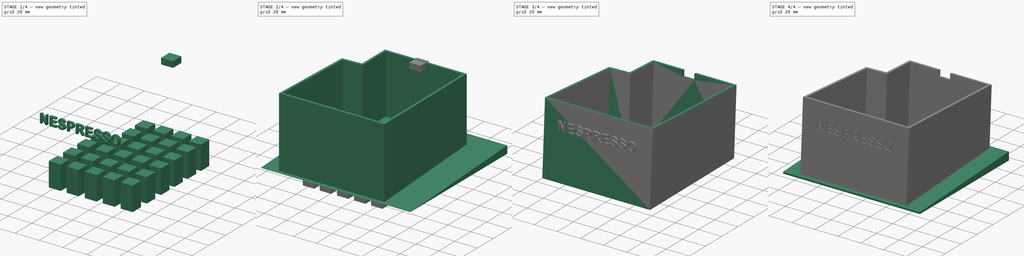
[diagram: build sequence overview — one tinted view per stage of 4, left to right]
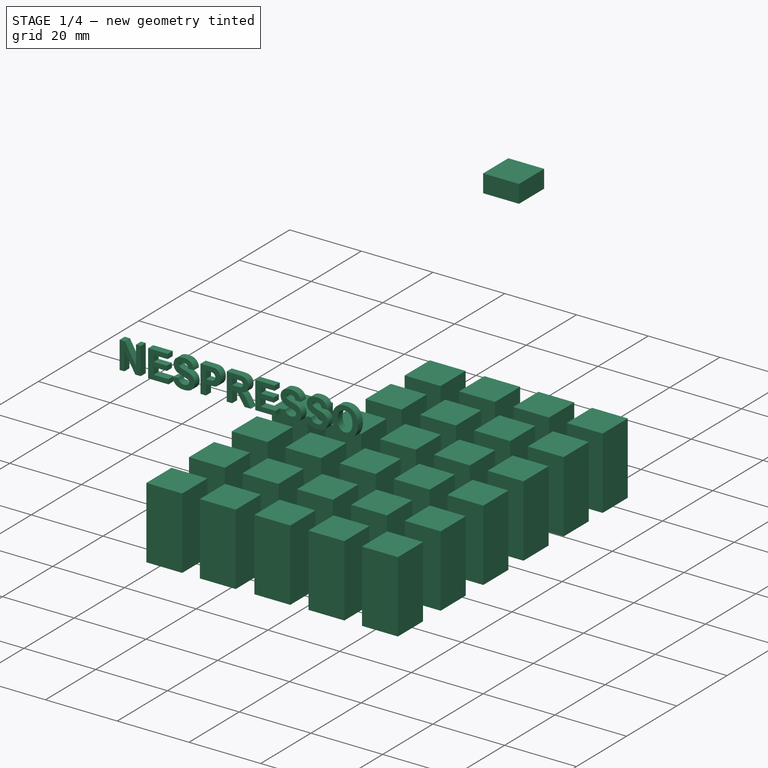
[diagram: stage 1 of 4 — iso view after this stage's code; geometry added in this stage tinted green]
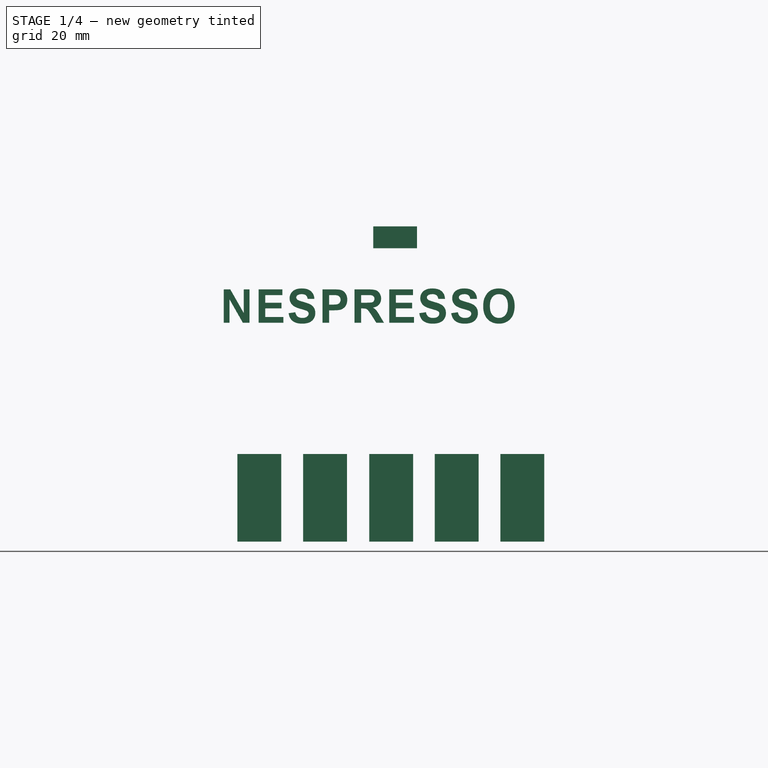
[diagram: stage 1 of 4 — front view after this stage's code; geometry added in this stage tinted green]
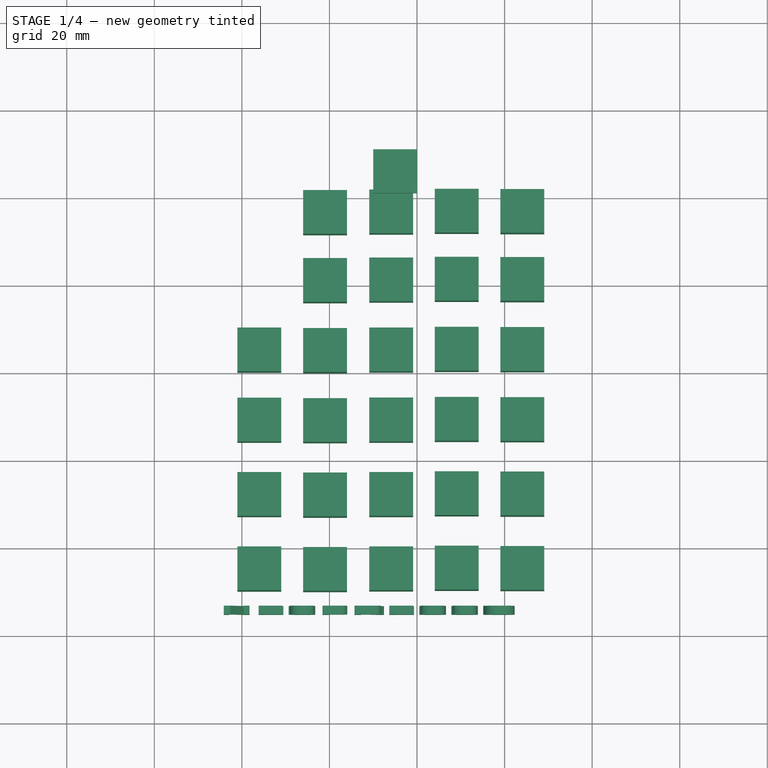
[diagram: stage 1 of 4 — top view after this stage's code; geometry added in this stage tinted green]
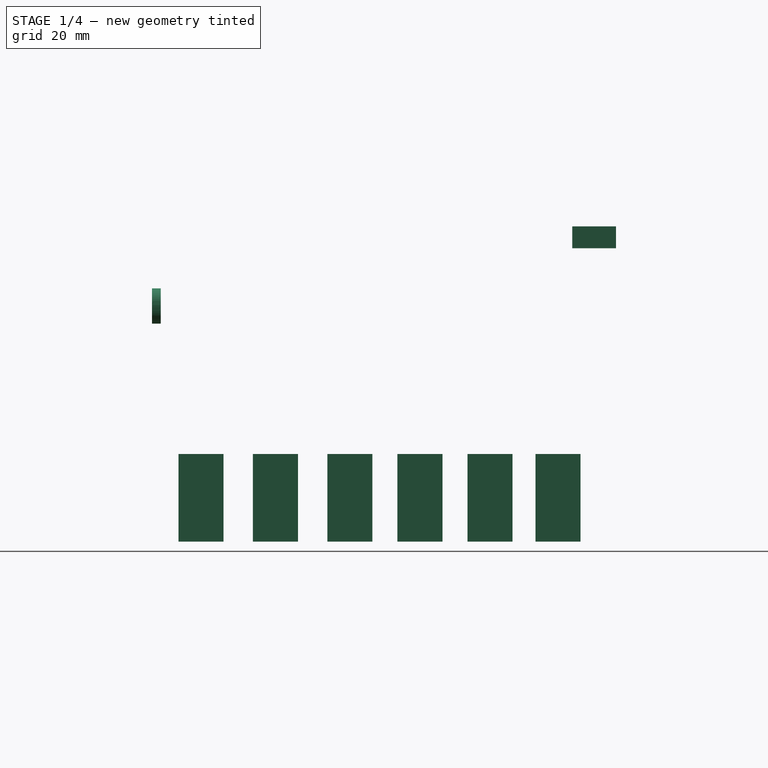
[diagram: stage 1 of 4 — right view after this stage's code; geometry added in this stage tinted green]
FCSTD DOCUMENT  (FreeCAD 0.16R6703 (Git))
Label: Essenza-Bucket-v4
License: FreeArt
LicenseURL: http://artlibre.org/licence/lal
objects: Part::Plane×121, Part::MultiFuse×12, Part::Feature×8, Part::Cut×5, Part::FeaturePython×4, Part::Extrusion×4, Part::Common×2, Part::Fuse×2, PartDesign::Pad×2, Part::Box×1, Sketcher::SketchObject×1, Part::Part2DObjectPython×1
note: 165 computed .brp shape members not serialized (recipe doc carries the construction recipe); baked Part::Feature solids carry a one-line shape summary decoded from their .brp

FEATURE [Part::Feature] Matrix_Deformation001
  Placement = pos=(-10,-0.1,-0.1) rot=(0.57735,0.57735,0.57735;2.0944rad)
  shape: bbox 132 x 122.1 x 6.6 mm, 5 faces (baked)
FEATURE [Part::Box] cube
  Height = 5
  Length = 10
  Placement = pos=(50,100,57) rot=(0,0,1;0rad)
  Width = 10
FEATURE [Sketcher::SketchObject] Sketch001
  sketch-geometry (118):
    g0: LineSegment [constr] StartX=5.72323 StartY=5.28614 StartZ=0 EndX=94.0468 EndY=5.28614 EndZ=0
    g1: LineSegment [constr] StartX=94.0468 StartY=5.28614 StartZ=0 EndX=94.0468 EndY=106.819 EndZ=0
    g2: LineSegment [constr] StartX=94.0468 StartY=106.819 StartZ=0 EndX=25.3557 EndY=106.819 EndZ=0
    g3: LineSegment [constr] StartX=25.3557 StartY=106.819 StartZ=0 EndX=25.3557 EndY=76.8205 EndZ=0
    g4: LineSegment [constr] StartX=25.3557 StartY=76.8205 StartZ=0 EndX=8.65681 EndY=76.1435 EndZ=0
    g5: LineSegment [constr] StartX=8.65681 StartY=76.1435 StartZ=0 EndX=5.94889 EndY=5.96312 EndZ=0
    g6: LineSegment StartX=79.0468 StartY=101.819 StartZ=0 EndX=89.0468 EndY=101.819 EndZ=0
    g7: LineSegment StartX=89.0468 StartY=101.819 StartZ=0 EndX=89.0468 EndY=91.8194 EndZ=0
    g8: LineSegment StartX=89.0468 StartY=91.8194 StartZ=0 EndX=79.0468 EndY=91.8194 EndZ=0
    g9: LineSegment StartX=79.0468 StartY=91.8194 StartZ=0 EndX=79.0468 EndY=101.819 EndZ=0
    g10: LineSegment StartX=79.0468 StartY=86.2861 StartZ=0 EndX=89.0468 EndY=86.2861 EndZ=0
    g11: LineSegment StartX=89.0468 StartY=86.2861 StartZ=0 EndX=89.0468 EndY=76.2861 EndZ=0
    g12: LineSegment StartX=89.0468 StartY=76.2861 StartZ=0 EndX=79.0468 EndY=76.2861 EndZ=0
    g13: LineSegment StartX=79.0468 StartY=76.2861 StartZ=0 EndX=79.0468 EndY=86.2861 EndZ=0
    g14: LineSegment StartX=79.0468 StartY=70.2861 StartZ=0 EndX=89.0468 EndY=70.2861 EndZ=0
    g15: LineSegment StartX=89.0468 StartY=70.2861 StartZ=0 EndX=89.0468 EndY=60.2861 EndZ=0
    g16: LineSegment StartX=89.0468 StartY=60.2861 StartZ=0 EndX=79.0468 EndY=60.2861 EndZ=0
    g17: LineSegment StartX=79.0468 StartY=60.2861 StartZ=0 EndX=79.0468 EndY=70.2861 EndZ=0
    g18: LineSegment StartX=79.0468 StartY=37.2861 StartZ=0 EndX=89.0468 EndY=37.2861 EndZ=0
    g19: LineSegment StartX=89.0468 StartY=37.2861 StartZ=0 EndX=89.0468 EndY=27.2861 EndZ=0
    g20: LineSegment StartX=89.0468 StartY=27.2861 StartZ=0 EndX=79.0468 EndY=27.2861 EndZ=0
    g21: LineSegment StartX=79.0468 StartY=27.2861 StartZ=0 EndX=79.0468 EndY=37.2861 EndZ=0
    g22: LineSegment StartX=79.0468 StartY=20.2861 StartZ=0 EndX=89.0468 EndY=20.2861 EndZ=0
    g23: LineSegment StartX=89.0468 StartY=20.2861 StartZ=0 EndX=89.0468 EndY=10.2861 EndZ=0
    g24: LineSegment StartX=89.0468 StartY=10.2861 StartZ=0 EndX=79.0468 EndY=10.2861 EndZ=0
    g25: LineSegment StartX=79.0468 StartY=10.2861 StartZ=0 EndX=79.0468 EndY=20.2861 EndZ=0
    g26: LineSegment StartX=79.0468 StartY=54.2861 StartZ=0 EndX=89.0468 EndY=54.2861 EndZ=0
    g27: LineSegment StartX=89.0468 StartY=54.2861 StartZ=0 EndX=89.0468 EndY=44.2861 EndZ=0
    g28: LineSegment StartX=89.0468 StartY=44.2861 StartZ=0 EndX=79.0468 EndY=44.2861 EndZ=0
    g29: LineSegment StartX=79.0468 StartY=44.2861 StartZ=0 EndX=79.0468 EndY=54.2861 EndZ=0
    g30: LineSegment StartX=64.0601 StartY=101.884 StartZ=0 EndX=74.0601 EndY=101.884 EndZ=0
    g31: LineSegment StartX=74.0601 StartY=101.884 StartZ=0 EndX=74.0601 EndY=91.8841 EndZ=0
    g32: LineSegment StartX=74.0601 StartY=91.8841 StartZ=0 EndX=64.0601 EndY=91.8841 EndZ=0
    g33: LineSegment StartX=64.0601 StartY=91.8841 StartZ=0 EndX=64.0601 EndY=101.884 EndZ=0
    g34: LineSegment StartX=64.0601 StartY=86.3508 StartZ=0 EndX=74.0601 EndY=86.3508 EndZ=0
    g35: LineSegment StartX=74.0601 StartY=86.3508 StartZ=0 EndX=74.0601 EndY=76.3508 EndZ=0
    g36: LineSegment StartX=74.0601 StartY=76.3508 StartZ=0 EndX=64.0601 EndY=76.3508 EndZ=0
    g37: LineSegment StartX=64.0601 StartY=76.3508 StartZ=0 EndX=64.0601 EndY=86.3508 EndZ=0
    g38: LineSegment StartX=64.0601 StartY=70.3508 StartZ=0 EndX=74.0601 EndY=70.3508 EndZ=0
    g39: LineSegment StartX=74.0601 StartY=70.3508 StartZ=0 EndX=74.0601 EndY=60.3508 EndZ=0
    g40: LineSegment StartX=74.0601 StartY=60.3508 StartZ=0 EndX=64.0601 EndY=60.3508 EndZ=0
    g41: LineSegment StartX=64.0601 StartY=60.3508 StartZ=0 EndX=64.0601 EndY=70.3508 EndZ=0
    g42: LineSegment StartX=64.0601 StartY=37.3508 StartZ=0 EndX=74.0601 EndY=37.3508 EndZ=0
    g43: LineSegment StartX=74.0601 StartY=37.3508 StartZ=0 EndX=74.0601 EndY=27.3508 EndZ=0
    g44: LineSegment StartX=74.0601 StartY=27.3508 StartZ=0 EndX=64.0601 EndY=27.3508 EndZ=0
    g45: LineSegment StartX=64.0601 StartY=27.3508 StartZ=0 EndX=64.0601 EndY=37.3508 EndZ=0
    g46: LineSegment StartX=64.0601 StartY=20.3508 StartZ=0 EndX=74.0601 EndY=20.3508 EndZ=0
    g47: LineSegment StartX=74.0601 StartY=20.3508 StartZ=0 EndX=74.0601 EndY=10.3508 EndZ=0
    g48: LineSegment StartX=74.0601 StartY=10.3508 StartZ=0 EndX=64.0601 EndY=10.3508 EndZ=0
    g49: LineSegment StartX=64.0601 StartY=10.3508 StartZ=0 EndX=64.0601 EndY=20.3508 EndZ=0
    g50: LineSegment StartX=64.0601 StartY=54.3508 StartZ=0 EndX=74.0601 EndY=54.3508 EndZ=0
    g51: LineSegment StartX=74.0601 StartY=54.3508 StartZ=0 EndX=74.0601 EndY=44.3508 EndZ=0
    g52: LineSegment StartX=74.0601 StartY=44.3508 StartZ=0 EndX=64.0601 EndY=44.3508 EndZ=0
    g53: LineSegment StartX=64.0601 StartY=44.3508 StartZ=0 EndX=64.0601 EndY=54.3508 EndZ=0
    g54: LineSegment StartX=49.1037 StartY=101.72 StartZ=0 EndX=59.1037 EndY=101.72 EndZ=0
    g55: LineSegment StartX=59.1037 StartY=101.72 StartZ=0 EndX=59.1037 EndY=91.7205 EndZ=0
    g56: LineSegment StartX=59.1037 StartY=91.7205 StartZ=0 EndX=49.1037 EndY=91.7205 EndZ=0
    g57: LineSegment StartX=49.1037 StartY=91.7205 StartZ=0 EndX=49.1037 EndY=101.72 EndZ=0
    g58: LineSegment StartX=49.1037 StartY=86.1872 StartZ=0 EndX=59.1037 EndY=86.1872 EndZ=0
    g59: LineSegment StartX=59.1037 StartY=86.1872 StartZ=0 EndX=59.1037 EndY=76.1872 EndZ=0
    g60: LineSegment StartX=59.1037 StartY=76.1872 StartZ=0 EndX=49.1037 EndY=76.1872 EndZ=0
    g61: LineSegment StartX=49.1037 StartY=76.1872 StartZ=0 EndX=49.1037 EndY=86.1872 EndZ=0
    g62: LineSegment StartX=49.1037 StartY=70.1872 StartZ=0 EndX=59.1037 EndY=70.1872 EndZ=0
    g63: LineSegment StartX=59.1037 StartY=70.1872 StartZ=0 EndX=59.1037 EndY=60.1872 EndZ=0
    g64: LineSegment StartX=59.1037 StartY=60.1872 StartZ=0 EndX=49.1037 EndY=60.1872 EndZ=0
    g65: LineSegment StartX=49.1037 StartY=60.1872 StartZ=0 EndX=49.1037 EndY=70.1872 EndZ=0
    g66: LineSegment StartX=49.1037 StartY=37.1872 StartZ=0 EndX=59.1037 EndY=37.1872 EndZ=0
    g67: LineSegment StartX=59.1037 StartY=37.1872 StartZ=0 EndX=59.1037 EndY=27.1872 EndZ=0
    g68: LineSegment StartX=59.1037 StartY=27.1872 StartZ=0 EndX=49.1037 EndY=27.1872 EndZ=0
    g69: LineSegment StartX=49.1037 StartY=27.1872 StartZ=0 EndX=49.1037 EndY=37.1872 EndZ=0
    g70: LineSegment StartX=49.1037 StartY=20.1872 StartZ=0 EndX=59.1037 EndY=20.1872 EndZ=0
    g71: LineSegment StartX=59.1037 StartY=20.1872 StartZ=0 EndX=59.1037 EndY=10.1872 EndZ=0
    g72: LineSegment StartX=59.1037 StartY=10.1872 StartZ=0 EndX=49.1037 EndY=10.1872 EndZ=0
    g73: LineSegment StartX=49.1037 StartY=10.1872 StartZ=0 EndX=49.1037 EndY=20.1872 EndZ=0
    g74: LineSegment StartX=49.1037 StartY=54.1872 StartZ=0 EndX=59.1037 EndY=54.1872 EndZ=0
    g75: LineSegment StartX=59.1037 StartY=54.1872 StartZ=0 EndX=59.1037 EndY=44.1872 EndZ=0
    g76: LineSegment StartX=59.1037 StartY=44.1872 StartZ=0 EndX=49.1037 EndY=44.1872 EndZ=0
    g77: LineSegment StartX=49.1037 StartY=44.1872 StartZ=0 EndX=49.1037 EndY=54.1872 EndZ=0
    g78: LineSegment StartX=33.9951 StartY=101.591 StartZ=0 EndX=43.9951 EndY=101.591 EndZ=0
    g79: LineSegment StartX=43.9951 StartY=101.591 StartZ=0 EndX=43.9951 EndY=91.5914 EndZ=0
    g80: LineSegment StartX=43.9951 StartY=91.5914 StartZ=0 EndX=33.9951 EndY=91.5914 EndZ=0
    g81: LineSegment StartX=33.9951 StartY=91.5914 StartZ=0 EndX=33.9951 EndY=101.591 EndZ=0
    g82: LineSegment StartX=33.9951 StartY=86.0581 StartZ=0 EndX=43.9951 EndY=86.0581 EndZ=0
    g83: LineSegment StartX=43.9951 StartY=86.0581 StartZ=0 EndX=43.9951 EndY=76.0581 EndZ=0
    g84: LineSegment StartX=43.9951 StartY=76.0581 StartZ=0 EndX=33.9951 EndY=76.0581 EndZ=0
    g85: LineSegment StartX=33.9951 StartY=76.0581 StartZ=0 EndX=33.9951 EndY=86.0581 EndZ=0
    g86: LineSegment StartX=33.9951 StartY=70.0581 StartZ=0 EndX=43.9951 EndY=70.0581 EndZ=0
    g87: LineSegment StartX=43.9951 StartY=70.0581 StartZ=0 EndX=43.9951 EndY=60.0581 EndZ=0
    g88: LineSegment StartX=43.9951 StartY=60.0581 StartZ=0 EndX=33.9951 EndY=60.0581 EndZ=0
    g89: LineSegment StartX=33.9951 StartY=60.0581 StartZ=0 EndX=33.9951 EndY=70.0581 EndZ=0
    g90: LineSegment StartX=33.9951 StartY=37.0581 StartZ=0 EndX=43.9951 EndY=37.0581 EndZ=0
    g91: LineSegment StartX=43.9951 StartY=37.0581 StartZ=0 EndX=43.9951 EndY=27.0581 EndZ=0
    g92: LineSegment StartX=43.9951 StartY=27.0581 StartZ=0 EndX=33.9951 EndY=27.0581 EndZ=0
    g93: LineSegment StartX=33.9951 StartY=27.0581 StartZ=0 EndX=33.9951 EndY=37.0581 EndZ=0
    g94: LineSegment StartX=33.9951 StartY=20.0581 StartZ=0 EndX=43.9951 EndY=20.0581 EndZ=0
    g95: LineSegment StartX=43.9951 StartY=20.0581 StartZ=0 EndX=43.9951 EndY=10.0581 EndZ=0
    g96: LineSegment StartX=43.9951 StartY=10.0581 StartZ=0 EndX=33.9951 EndY=10.0581 EndZ=0
    g97: LineSegment StartX=33.9951 StartY=10.0581 StartZ=0 EndX=33.9951 EndY=20.0581 EndZ=0
    g98: LineSegment StartX=33.9951 StartY=54.0581 StartZ=0 EndX=43.9951 EndY=54.0581 EndZ=0
    g99: LineSegment StartX=43.9951 StartY=54.0581 StartZ=0 EndX=43.9951 EndY=44.0581 EndZ=0
    g100: LineSegment StartX=43.9951 StartY=44.0581 StartZ=0 EndX=33.9951 EndY=44.0581 EndZ=0
    g101: LineSegment StartX=33.9951 StartY=44.0581 StartZ=0 EndX=33.9951 EndY=54.0581 EndZ=0
    g102: LineSegment StartX=18.9823 StartY=70.1808 StartZ=0 EndX=28.9823 EndY=70.1808 EndZ=0
    g103: LineSegment StartX=28.9823 StartY=70.1808 StartZ=0 EndX=28.9823 EndY=60.1808 EndZ=0
    g104: LineSegment StartX=28.9823 StartY=60.1808 StartZ=0 EndX=18.9823 EndY=60.1808 EndZ=0
    g105: LineSegment StartX=18.9823 StartY=60.1808 StartZ=0 EndX=18.9823 EndY=70.1808 EndZ=0
    g106: LineSegment StartX=18.9823 StartY=37.1808 StartZ=0 EndX=28.9823 EndY=37.1808 EndZ=0
    g107: LineSegment StartX=28.9823 StartY=37.1808 StartZ=0 EndX=28.9823 EndY=27.1808 EndZ=0
    g108: LineSegment StartX=28.9823 StartY=27.1808 StartZ=0 EndX=18.9823 EndY=27.1808 EndZ=0
    g109: LineSegment StartX=18.9823 StartY=27.1808 StartZ=0 EndX=18.9823 EndY=37.1808 EndZ=0
    g110: LineSegment StartX=18.9823 StartY=20.1808 StartZ=0 EndX=28.9823 EndY=20.1808 EndZ=0
    g111: LineSegment StartX=28.9823 StartY=20.1808 StartZ=0 EndX=28.9823 EndY=10.1808 EndZ=0
    g112: LineSegment StartX=28.9823 StartY=10.1808 StartZ=0 EndX=18.9823 EndY=10.1808 EndZ=0
    g113: LineSegment StartX=18.9823 StartY=10.1808 StartZ=0 EndX=18.9823 EndY=20.1808 EndZ=0
    g114: LineSegment StartX=18.9823 StartY=54.1808 StartZ=0 EndX=28.9823 EndY=54.1808 EndZ=0
    g115: LineSegment StartX=28.9823 StartY=54.1808 StartZ=0 EndX=28.9823 EndY=44.1808 EndZ=0
    g116: LineSegment StartX=28.9823 StartY=44.1808 StartZ=0 EndX=18.9823 EndY=44.1808 EndZ=0
    g117: LineSegment StartX=18.9823 StartY=44.1808 StartZ=0 EndX=18.9823 EndY=54.1808 EndZ=0
  constraints (347):
    c: Horizontal(g0)
    c: Coincident(g0,g1)
    c: Vertical(g1)
    c: Coincident(g1,g2)
    c: Horizontal(g2)
    c: Coincident(g2,g3)
    c: Vertical(g3)
    c: Coincident(g3,g4)
    c: Coincident(g4,g5)
    c: Coincident(g6,g7)
    c: Coincident(g7,g8)
    c: Coincident(g8,g9)
    c: Coincident(g9,g6)
    c: Horizontal(g6)
    c: Horizontal(g8)
    c: Vertical(g7)
    c: Vertical(g9)
    c: DistanceX(g6,g6) = 10
    c: DistanceY(g9,g9) = 10
    c: Coincident(g10,g11)
    c: Coincident(g11,g12)
    c: Coincident(g12,g13)
    c: Coincident(g13,g10)
    c: Horizontal(g10)
    c: Vertical(g11)
    c: Vertical(g13)
    c: Coincident(g14,g15)
    c: Coincident(g15,g16)
    c: Coincident(g16,g17)
    c: Coincident(g17,g14)
    c: Vertical(g15)
    c: Coincident(g18,g19)
    c: Coincident(g19,g20)
    c: Coincident(g20,g21)
    c: Coincident(g21,g18)
    c: Horizontal(g20)
    c: Vertical(g19)
    c: Vertical(g21)
    c: Coincident(g22,g23)
    c: Coincident(g23,g24)
    c: Coincident(g24,g25)
    c: Coincident(g25,g22)
    c: Horizontal(g24)
    c: Vertical(g23)
    c: Vertical(g25)
    c: Coincident(g26,g27)
    c: Coincident(g27,g28)
    c: Coincident(g28,g29)
    c: Coincident(g29,g26)
    c: Vertical(g27)
    c: Parallel(g10,g12)
    c: Parallel(g12,g14)
    c: Parallel(g14,g16)
    c: Parallel(g16,g26)
    c: Parallel(g26,g28)
    c: Parallel(g28,g18)
    c: Parallel(g20,g22)
    c: Equal(g9,g13)
    c: Equal(g13,g17)
    c: Equal(g17,g29)
    c: Equal(g29,g21)
    c: Equal(g21,g25)
    c: Equal(g6,g10)
    c: Equal(g10,g14)
    c: Equal(g14,g16)
    c: Equal(g16,g26)
    c: Equal(g26,g28)
    c: Equal(g28,g12)
    c: Equal(g12,g18)
    c: Equal(g18,g20)
    c: Equal(g20,g22)
    c: Equal(g22,g24)
    c: Equal(g25,g21)
    c: Equal(g21,g29)
    c: Equal(g29,g17)
    c: Equal(g17,g13)
    c: Equal(g13,g9)
    c: Distance(g6,g1) = 5
    c: Distance(g6,g2) = 5
    c: DistanceY(g-1,g0) = 5.28614
    c: DistanceX(g-2,g5) = 5.94889
    c: Distance(g23,g0) = 5
    c: Distance(g22,g1) = 5
    c: Distance(g10,g1) = 5
    c: Distance(g14,g1) = 5
    c: Distance(g26,g1) = 5
    c: Distance(g18,g1) = 5
    c: Distance(g20,g22) = 7
    c: Distance(g18,g28) = 7
    c: Distance(g26,g16) = 6
    c: Distance(g14,g12) = 6
    c: Coincident(g30,g31)
    c: Coincident(g31,g32)
    c: Coincident(g32,g33)
    c: Coincident(g33,g30)
    c: Horizontal(g30)
    c: Horizontal(g32)
    c: Vertical(g31)
    c: Vertical(g33)
    c: Equal(g6,g30) = 10
    c: Equal(g9,g33) = 10
    c: Coincident(g34,g35)
    c: Coincident(g35,g36)
    c: Coincident(g36,g37)
    c: Coincident(g37,g34)
    c: Horizontal(g34)
    c: Vertical(g35)
    c: Vertical(g37)
    c: Coincident(g38,g39)
    c: Coincident(g39,g40)
    c: Coincident(g40,g41)
    c: Coincident(g41,g38)
    c: Vertical(g39)
    c: Coincident(g42,g43)
    c: Coincident(g43,g44)
    c: Coincident(g44,g45)
    c: Coincident(g45,g42)
    c: Horizontal(g44)
    c: Vertical(g43)
    c: Vertical(g45)
    c: Coincident(g46,g47)
    c: Coincident(g47,g48)
    c: Coincident(g48,g49)
    c: Coincident(g49,g46)
    c: Horizontal(g48)
    c: Vertical(g47)
    c: Vertical(g49)
    c: Coincident(g50,g51)
    c: Coincident(g51,g52)
    c: Coincident(g52,g53)
    c: Coincident(g53,g50)
    c: Vertical(g51)
    c: Parallel(g34,g36)
    c: Parallel(g36,g38)
    c: Parallel(g38,g40)
    c: Parallel(g40,g50)
    c: Parallel(g50,g52)
    c: Parallel(g52,g42)
    c: Parallel(g44,g46)
    c: Equal(g33,g37)
    c: Equal(g37,g41)
    c: Equal(g41,g53)
    c: Equal(g53,g45)
    c: Equal(g45,g49)
    c: Equal(g30,g34)
    c: Equal(g34,g38)
    c: Equal(g38,g40)
    c: Equal(g40,g50)
    c: Equal(g50,g52)
    c: Equal(g52,g36)
    c: Equal(g36,g42)
    c: Equal(g42,g44)
    c: Equal(g44,g46)
    c: Equal(g46,g48)
    c: Equal(g49,g45)
    c: Equal(g45,g53)
    c: Equal(g53,g41)
    c: Equal(g41,g37)
    c: Equal(g37,g33)
    c: Distance(g44,g46) = 7
    c: Distance(g42,g52) = 7
    c: Distance(g50,g40) = 6
    c: Distance(g38,g36) = 6
    c: Coincident(g54,g55)
    c: Coincident(g55,g56)
    c: Coincident(g56,g57)
    c: Coincident(g57,g54)
    c: Horizontal(g54)
    c: Horizontal(g56)
    c: Vertical(g55)
    c: Vertical(g57)
    c: Coincident(g58,g59)
    c: Coincident(g59,g60)
    c: Coincident(g60,g61)
    c: Coincident(g61,g58)
    c: Horizontal(g58)
    c: Vertical(g59)
    c: Vertical(g61)
    c: Coincident(g62,g63)
    c: Coincident(g63,g64)
    c: Coincident(g64,g65)
    c: Coincident(g65,g62)
    c: Vertical(g63)
    c: Coincident(g66,g67)
    c: Coincident(g67,g68)
    c: Coincident(g68,g69)
    c: Coincident(g69,g66)
    c: Horizontal(g68)
    c: Vertical(g67)
    c: Vertical(g69)
    c: Coincident(g70,g71)
    c: Coincident(g71,g72)
    c: Coincident(g72,g73)
    c: Coincident(g73,g70)
    c: Horizontal(g72)
    c: Vertical(g71)
    c: Vertical(g73)
    c: Coincident(g74,g75)
    c: Coincident(g75,g76)
    c: Coincident(g76,g77)
    c: Coincident(g77,g74)
    c: Vertical(g75)
    c: Parallel(g58,g60)
    c: Parallel(g60,g62)
    c: Parallel(g62,g64)
    c: Parallel(g64,g74)
    c: Parallel(g74,g76)
    c: Parallel(g76,g66)
    c: Parallel(g68,g70)
    c: Equal(g57,g61)
    c: Equal(g61,g65)
    c: Equal(g65,g77)
    c: Equal(g77,g69)
    c: Equal(g69,g73)
    c: Equal(g54,g58)
    c: Equal(g58,g62)
    c: Equal(g62,g64)
    c: Equal(g64,g74)
    c: Equal(g74,g76)
    c: Equal(g76,g60)
    c: Equal(g60,g66)
    c: Equal(g66,g68)
    c: Equal(g68,g70)
    c: Equal(g70,g72)
    c: Equal(g73,g69)
    c: Equal(g69,g77)
    c: Equal(g77,g65)
    c: Equal(g65,g61)
    c: Equal(g61,g57)
    c: Distance(g68,g70) = 7
    c: Distance(g66,g76) = 7
    c: Distance(g74,g64) = 6
    c: Distance(g62,g60) = 6
    c: Coincident(g78,g79)
    c: Coincident(g79,g80)
    c: Coincident(g80,g81)
    c: Coincident(g81,g78)
    c: Horizontal(g78)
    c: Horizontal(g80)
    c: Vertical(g79)
    c: Vertical(g81)
    c: Coincident(g82,g83)
    c: Coincident(g83,g84)
    c: Coincident(g84,g85)
    c: Coincident(g85,g82)
    c: Horizontal(g82)
    c: Vertical(g83)
    c: Vertical(g85)
    c: Coincident(g86,g87)
    c: Coincident(g87,g88)
    c: Coincident(g88,g89)
    c: Coincident(g89,g86)
    c: Vertical(g87)
    c: Coincident(g90,g91)
    c: Coincident(g91,g92)
    c: Coincident(g92,g93)
    c: Coincident(g93,g90)
    c: Horizontal(g92)
    c: Vertical(g91)
    c: Vertical(g93)
    c: Coincident(g94,g95)
    c: Coincident(g95,g96)
    c: Coincident(g96,g97)
    c: Coincident(g97,g94)
    c: Horizontal(g96)
    c: Vertical(g95)
    c: Vertical(g97)
    c: Coincident(g98,g99)
    c: Coincident(g99,g100)
    c: Coincident(g100,g101)
    c: Coincident(g101,g98)
    c: Vertical(g99)
    c: Parallel(g82,g84)
    c: Parallel(g84,g86)
    c: Parallel(g86,g88)
    c: Parallel(g88,g98)
    c: Parallel(g98,g100)
    c: Parallel(g100,g90)
    c: Parallel(g92,g94)
    c: Equal(g81,g85)
    c: Equal(g85,g89)
    c: Equal(g89,g101)
    c: Equal(g101,g93)
    c: Equal(g93,g97)
    c: Equal(g78,g82)
    c: Equal(g82,g86)
    c: Equal(g86,g88)
    c: Equal(g88,g98)
    c: Equal(g98,g100)
    c: Equal(g100,g84)
    c: Equal(g84,g90)
    c: Equal(g90,g92)
    c: Equal(g92,g94)
    c: Equal(g94,g96)
    c: Equal(g97,g93)
    c: Equal(g93,g101)
    c: Equal(g101,g89)
    c: Equal(g89,g85)
    c: Equal(g85,g81)
    c: Distance(g92,g94) = 7
    c: Distance(g90,g100) = 7
    c: Distance(g98,g88) = 6
    c: Distance(g86,g84) = 6
    c: Coincident(g102,g103)
    c: Coincident(g103,g104)
    c: Coincident(g104,g105)
    c: Coincident(g105,g102)
    c: Vertical(g103)
    c: Coincident(g106,g107)
    c: Coincident(g107,g108)
    c: Coincident(g108,g109)
    c: Coincident(g109,g106)
    c: Horizontal(g108)
    c: Vertical(g107)
    c: Vertical(g109)
    c: Coincident(g110,g111)
    c: Coincident(g111,g112)
    c: Coincident(g112,g113)
    c: Coincident(g113,g110)
    c: Horizontal(g112)
    c: Vertical(g111)
    c: Vertical(g113)
    c: Coincident(g114,g115)
    c: Coincident(g115,g116)
    c: Coincident(g116,g117)
    c: Coincident(g117,g114)
    c: Vertical(g115)
    c: Parallel(g102,g104)
    c: Parallel(g104,g114)
    c: Parallel(g114,g116)
    c: Parallel(g116,g106)
    c: Parallel(g108,g110)
    c: Equal(g105,g117)
    c: Equal(g117,g109)
    c: Equal(g109,g113)
    c: Equal(g102,g104)
    c: Equal(g104,g114)
    c: Equal(g114,g116)
    c: Equal(g106,g108)
    c: Equal(g108,g110)
    c: Equal(g110,g112)
    c: Equal(g113,g109)
    c: Equal(g109,g117)
    c: Equal(g117,g105)
    c: Distance(g108,g110) = 7
    c: Distance(g106,g116) = 7
    c: Distance(g114,g104) = 6
FEATURE [PartDesign::Pad] Pad
  Length = 20
  Length2 = 100
  Midplane = true
  Sketch = -> Sketch001
  Type = 0
FEATURE [Part::Part2DObjectPython] ShapeString001  # Draft 2D object (typed FeaturePython)
  FontFile = <path>
  Placement = pos=(15,5,40) rot=(1,0,0;1.5708rad)
  Size = 8
  String = NESPRESSO
  Tracking = 100
FEATURE [PartDesign::Pad] Pad001
  Length = 2
  Length2 = 100
  Midplane = true
  Placement = pos=(15,5,40) rot=(1,0,0;1.5708rad)
  Reversed = true
  Sketch = -> ShapeString001
  Type = 0
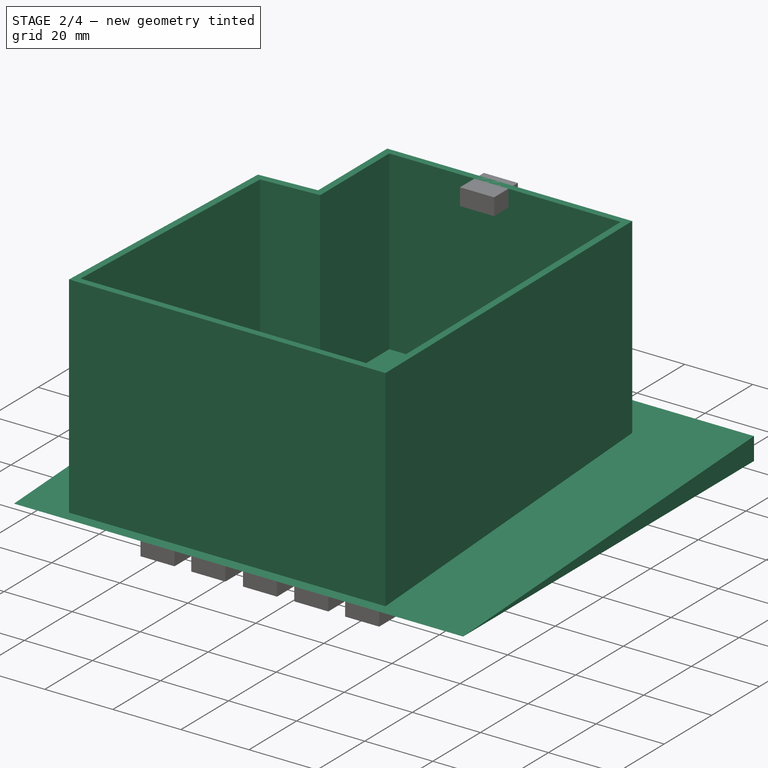
[diagram: stage 2 of 4 — iso view after this stage's code; geometry added in this stage tinted green]
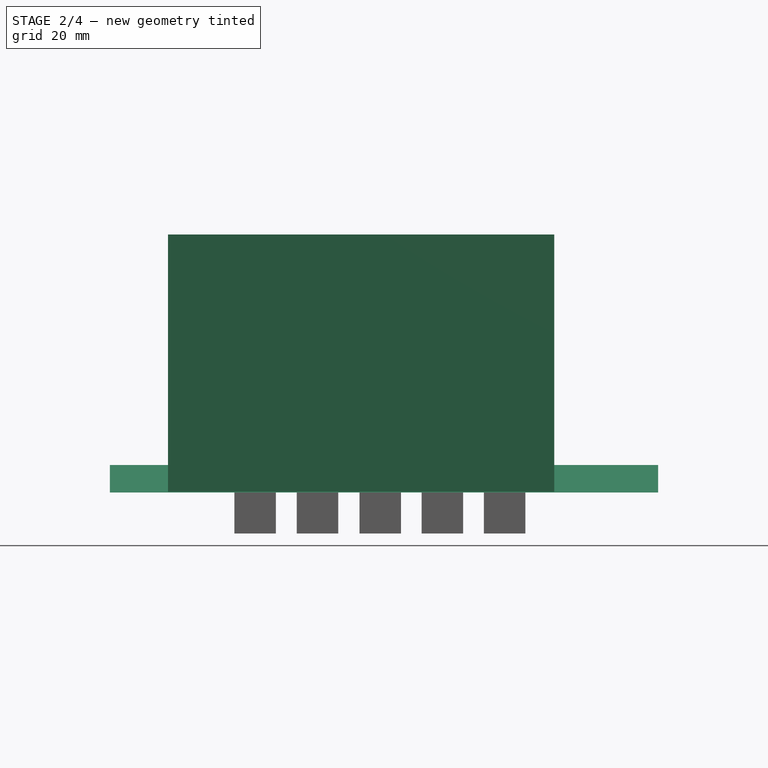
[diagram: stage 2 of 4 — front view after this stage's code; geometry added in this stage tinted green]
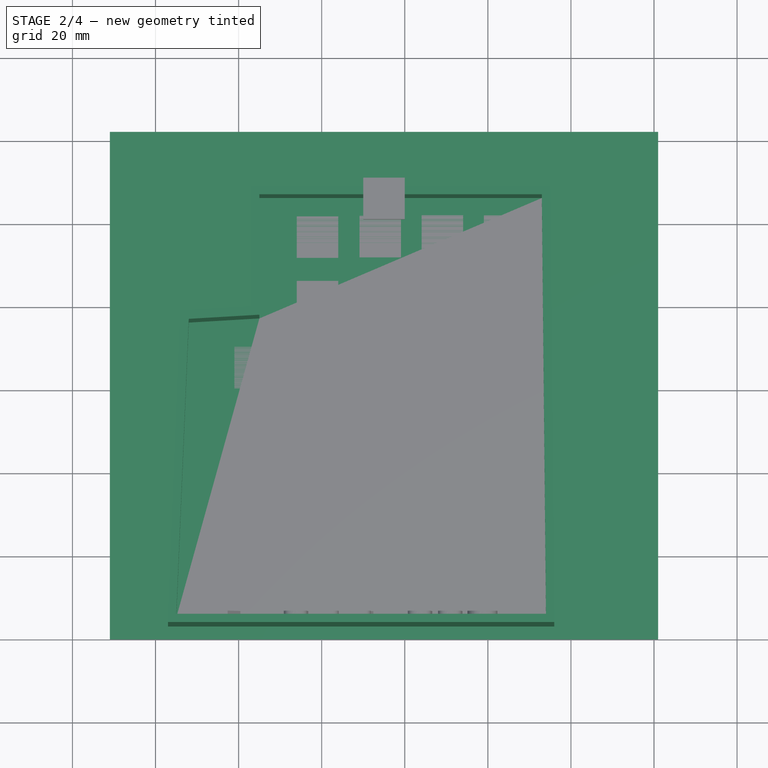
[diagram: stage 2 of 4 — top view after this stage's code; geometry added in this stage tinted green]
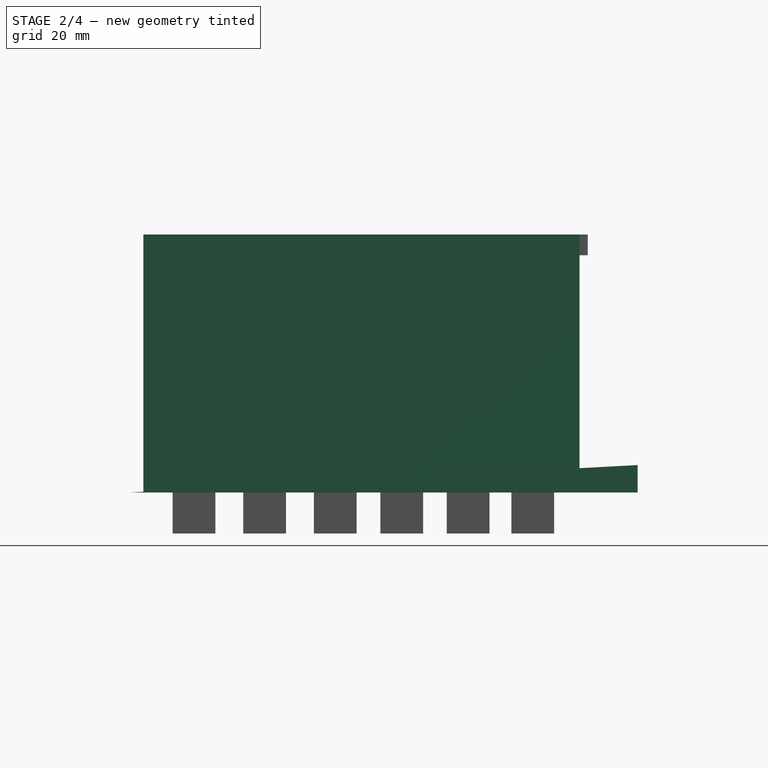
[diagram: stage 2 of 4 — right view after this stage's code; geometry added in this stage tinted green]
FEATURE [Part::Feature] wire
  shape: bbox 89 x 101 x 2e-07 mm, 1 faces, 0 solids (baked)
FEATURE [Part::Feature] wire001
  shape: bbox 120 x 120 x 2e-07 mm, 1 faces, 0 solids (baked)
FEATURE [Part::Plane] square
  Length = 15
  Placement = pos=(2.5,-97.5,0) rot=(0,0,1;0rad)
  Width = 15
FEATURE [Part::Plane] square001 .. square010  x10 (patterned run collapsed; names and placements below)
  Length = 15
  Width = 15
  placements: 10 in arithmetic series — first pos=(22.5,-97.5,0) rot=(0,0,1;0rad), step (20,0,0), last pos=(202.5,-97.5,0) rot=(0,0,1;0rad)
FEATURE [Part::MultiFuse] Group
  Shapes = -> [square,square001,square002,square003,square004,square005,square006,square007,square008,square009,square010]
FEATURE [Part::Plane] square011 .. square021  x11 (patterned run collapsed; names and placements below)
  Length = 15
  Width = 15
  placements: 11 in arithmetic series — first pos=(2.5,-77.5,0) rot=(0,0,1;0rad), step (20,0,0), last pos=(202.5,-77.5,0) rot=(0,0,1;0rad)
FEATURE [Part::MultiFuse] Group001
  Shapes = -> [square011,square012,square013,square014,square015,square016,square017,square018,square019,square020,square021]
FEATURE [Part::Plane] square022 .. square032  x11 (patterned run collapsed; names and placements below)
  Length = 15
  Width = 15
  placements: 11 in arithmetic series — first pos=(2.5,-57.5,0) rot=(0,0,1;0rad), step (20,0,0), last pos=(202.5,-57.5,0) rot=(0,0,1;0rad)
FEATURE [Part::MultiFuse] Group002
  Shapes = -> [square022,square023,square024,square025,square026,square027,square028,square029,square030,square031,square032]
FEATURE [Part::Plane] square033 .. square043  x11 (patterned run collapsed; names and placements below)
  Length = 15
  Width = 15
  placements: 11 in arithmetic series — first pos=(2.5,-37.5,0) rot=(0,0,1;0rad), step (20,0,0), last pos=(202.5,-37.5,0) rot=(0,0,1;0rad)
FEATURE [Part::MultiFuse] Group003
  Shapes = -> [square033,square034,square035,square036,square037,square038,square039,square040,square041,square042,square043]
FEATURE [Part::Plane] square044 .. square054  x11 (patterned run collapsed; names and placements below)
  Length = 15
  Width = 15
  placements: 11 in arithmetic series — first pos=(2.5,-17.5,0) rot=(0,0,1;0rad), step (20,0,0), last pos=(202.5,-17.5,0) rot=(0,0,1;0rad)
FEATURE [Part::MultiFuse] Group004
  Shapes = -> [square044,square045,square046,square047,square048,square049,square050,square051,square052,square053,square054]
FEATURE [Part::Plane] square055 .. square065  x11 (patterned run collapsed; names and placements below)
  Length = 15
  Width = 15
  placements: 11 in arithmetic series — first pos=(2.5,2.5,0) rot=(0,0,1;0rad), step (20,0,0), last pos=(202.5,2.5,0) rot=(0,0,1;0rad)
FEATURE [Part::MultiFuse] Group005
  Shapes = -> [square055,square056,square057,square058,square059,square060,square061,square062,square063,square064,square065]
FEATURE [Part::Plane] square066 .. square076  x11 (patterned run collapsed; names and placements below)
  Length = 15
  Width = 15
  placements: 11 in arithmetic series — first pos=(2.5,22.5,0) rot=(0,0,1;0rad), step (20,0,0), last pos=(202.5,22.5,0) rot=(0,0,1;0rad)
FEATURE [Part::MultiFuse] Group006
  Shapes = -> [square066,square067,square068,square069,square070,square071,square072,square073,square074,square075,square076]
FEATURE [Part::Plane] square077 .. square087  x11 (patterned run collapsed; names and placements below)
  Length = 15
  Width = 15
  placements: 11 in arithmetic series — first pos=(2.5,42.5,0) rot=(0,0,1;0rad), step (20,0,0), last pos=(202.5,42.5,0) rot=(0,0,1;0rad)
FEATURE [Part::MultiFuse] Group007
  Shapes = -> [square077,square078,square079,square080,square081,square082,square083,square084,square085,square086,square087]
FEATURE [Part::Plane] square088 .. square098  x11 (patterned run collapsed; names and placements below)
  Length = 15
  Width = 15
  placements: 11 in arithmetic series — first pos=(2.5,62.5,0) rot=(0,0,1;0rad), step (20,0,0), last pos=(202.5,62.5,0) rot=(0,0,1;0rad)
FEATURE [Part::MultiFuse] Group008
  Shapes = -> [square088,square089,square090,square091,square092,square093,square094,square095,square096,square097,square098]
FEATURE [Part::Plane] square099 .. square109  x11 (patterned run collapsed; names and placements below)
  Length = 15
  Width = 15
  placements: 11 in arithmetic series — first pos=(2.5,82.5,0) rot=(0,0,1;0rad), step (20,0,0), last pos=(202.5,82.5,0) rot=(0,0,1;0rad)
FEATURE [Part::MultiFuse] Group009
  Shapes = -> [square099,square100,square101,square102,square103,square104,square105,square106,square107,square108,square109]
FEATURE [Part::Plane] square110 .. square120  x11 (patterned run collapsed; names and placements below)
  Length = 15
  Width = 15
  placements: 11 in arithmetic series — first pos=(2.5,102.5,0) rot=(0,0,1;0rad), step (20,0,0), last pos=(202.5,102.5,0) rot=(0,0,1;0rad)
FEATURE [Part::MultiFuse] Group010
  Shapes = -> [square110,square111,square112,square113,square114,square115,square116,square117,square118,square119,square120]
FEATURE [Part::MultiFuse] Group011
  Placement = pos=(0,0,-5) rot=(0,0,1;0.785398rad)
  Shapes = -> [Group,Group001,Group002,Group003,Group004,Group005,Group006,Group007,Group008,Group009,Group010]
FEATURE [Part::Cut] difference
  Base = -> wire001
  Tool = -> Group011
FEATURE [Part::Common] intersection
  Base = -> wire
  Tool = -> difference
FEATURE [Part::FeaturePython] RefineLinearExtrude  # WARN: FeaturePython — macro-defined, semantics opaque (R4)
  Base = -> intersection
FEATURE [Part::Extrusion] LinearExtrude
  Base = -> RefineLinearExtrude
  Dir = (0,0,10)
  Solid = true
FEATURE [Part::Feature] wire003
  shape: bbox 93 x 105 x 2e-07 mm, 1 faces, 0 solids (baked)
FEATURE [Part::Feature] wire004
  shape: bbox 89 x 101 x 2e-07 mm, 1 faces, 0 solids (baked)
FEATURE [Part::Cut] difference001
  Base = -> wire003
  Tool = -> wire004
FEATURE [Part::FeaturePython] RefineLinearExtrude002  # WARN: FeaturePython — macro-defined, semantics opaque (R4)
  Base = -> difference001
FEATURE [Part::Extrusion] LinearExtrude002
  Base = -> RefineLinearExtrude002
  Dir = (0,0,62)
  Solid = true
FEATURE [Part::Fuse] union001
  Base = -> Matrix_Deformation001
  Tool = -> cube
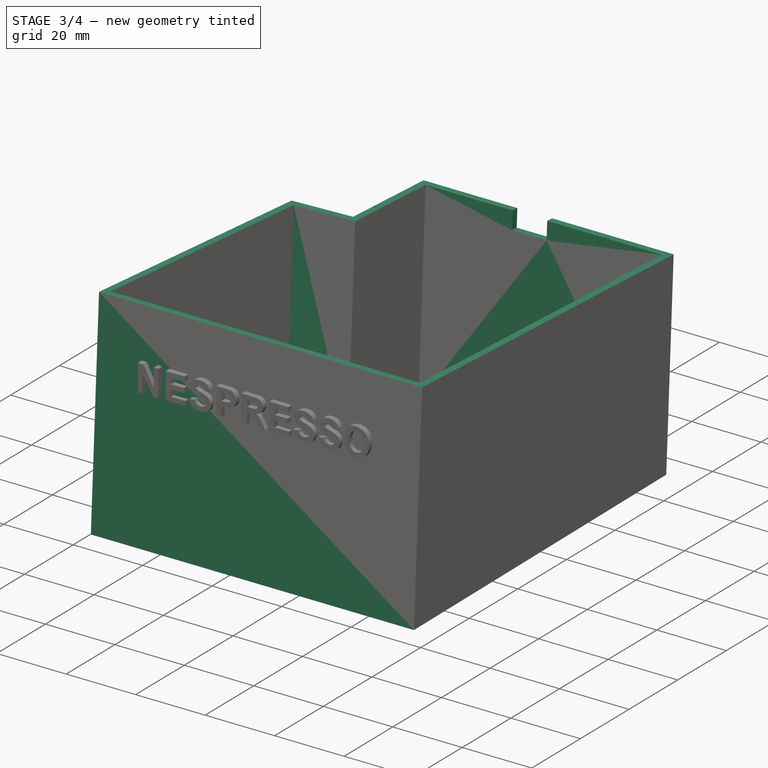
[diagram: stage 3 of 4 — iso view after this stage's code; geometry added in this stage tinted green]
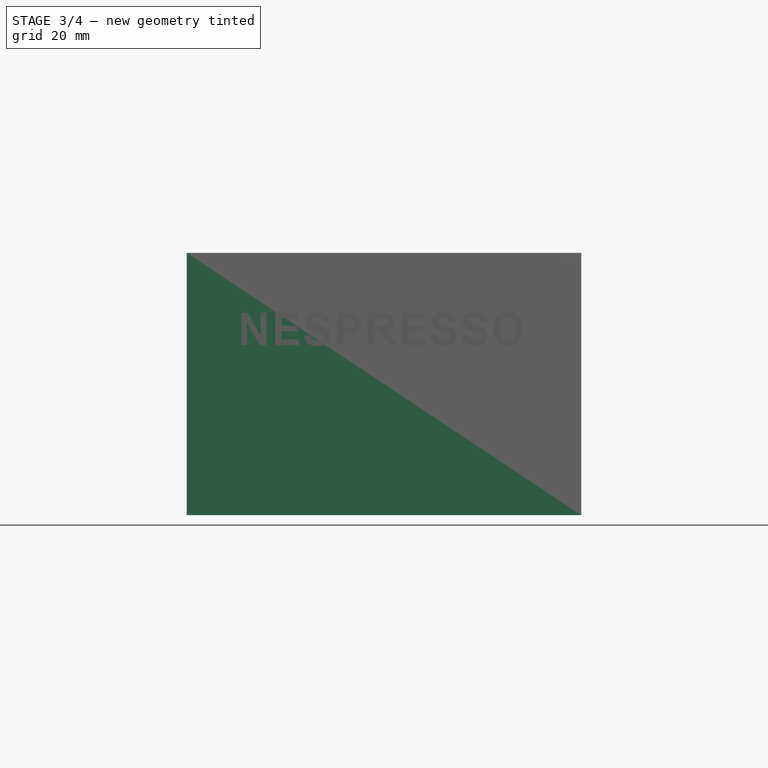
[diagram: stage 3 of 4 — front view after this stage's code; geometry added in this stage tinted green]
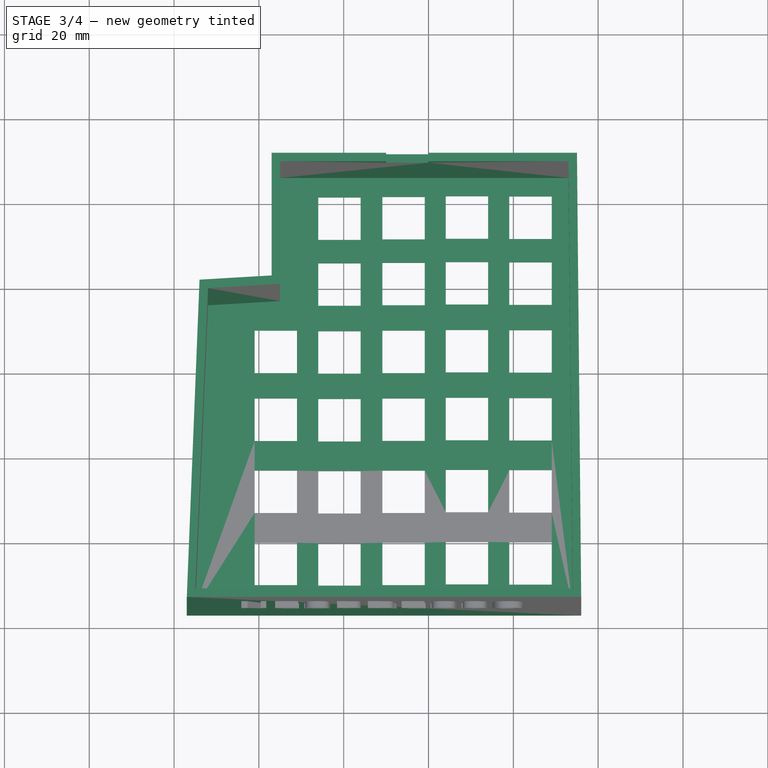
[diagram: stage 3 of 4 — top view after this stage's code; geometry added in this stage tinted green]
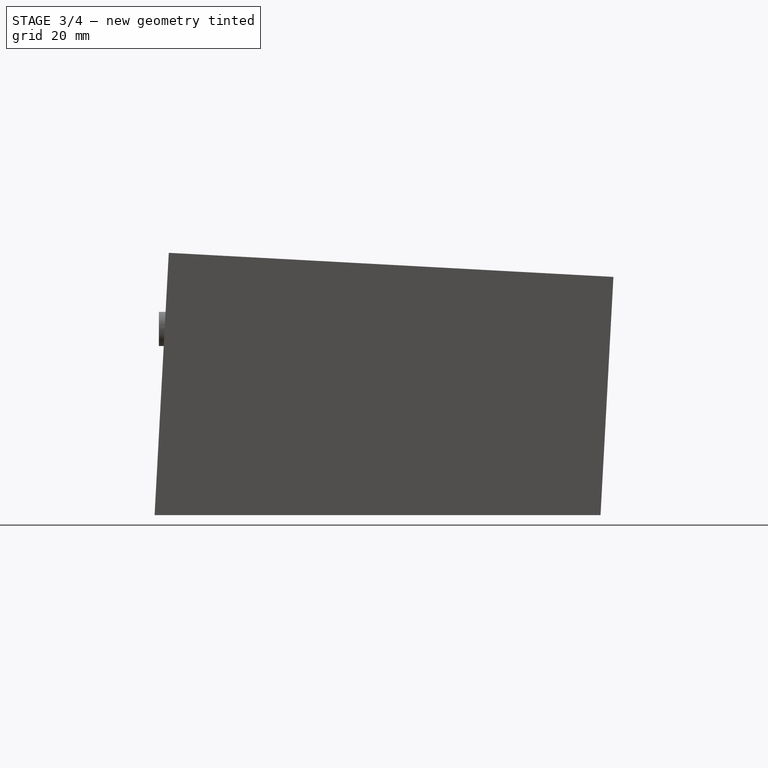
[diagram: stage 3 of 4 — right view after this stage's code; geometry added in this stage tinted green]
FEATURE [Part::Feature] Matrix_Deformation
  Placement = pos=(-10,-0.1,-0.1) rot=(0.57735,0.57735,0.57735;2.0944rad)
  shape: bbox 132 x 122.7 x 7.7 mm, 6 faces (baked)
FEATURE [Part::Common] intersection001
  Base = -> LinearExtrude
  Tool = -> Matrix_Deformation
FEATURE [Part::Fuse] union
  Base = -> intersection001
  Tool = -> LinearExtrude002
FEATURE [Part::Cut] difference002
  Base = -> union
  Placement = pos=(0,0,0) rot=(-1,0,0;0.054105rad)
  Tool = -> union001
FEATURE [Part::Cut] Cut
  Base = -> difference002
  Tool = -> Pad
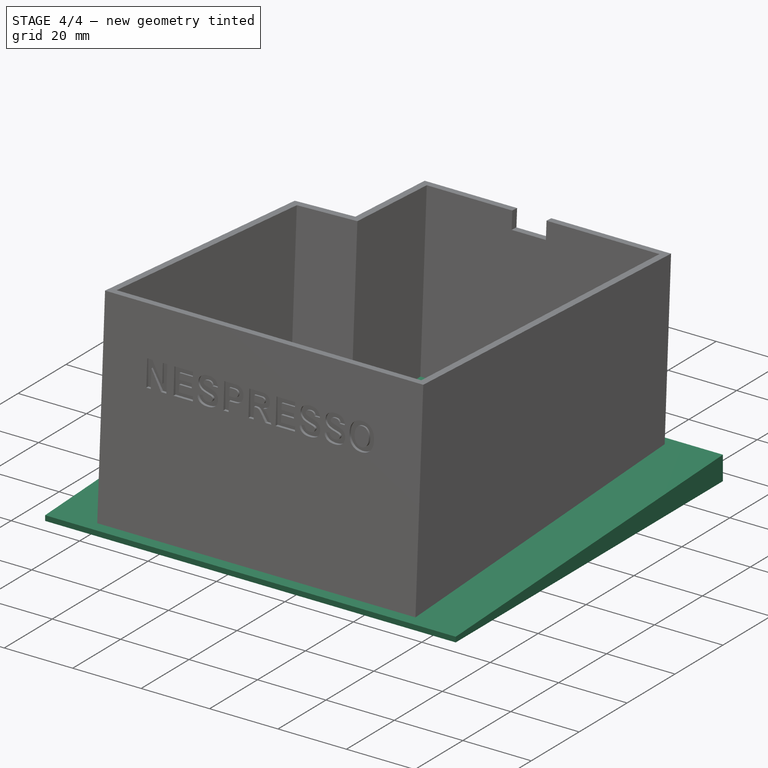
[diagram: stage 4 of 4 — iso view after this stage's code; geometry added in this stage tinted green]
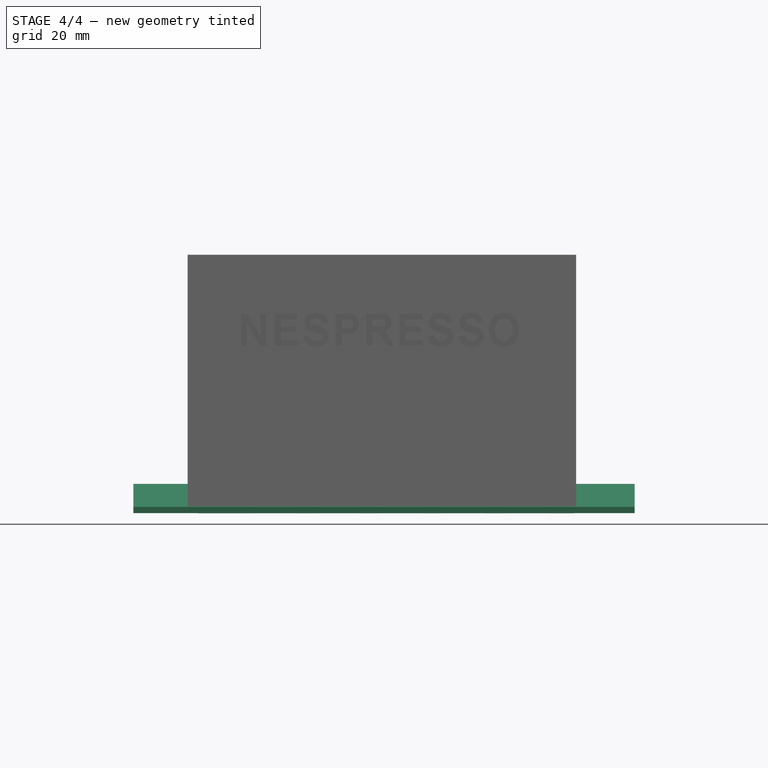
[diagram: stage 4 of 4 — front view after this stage's code; geometry added in this stage tinted green]
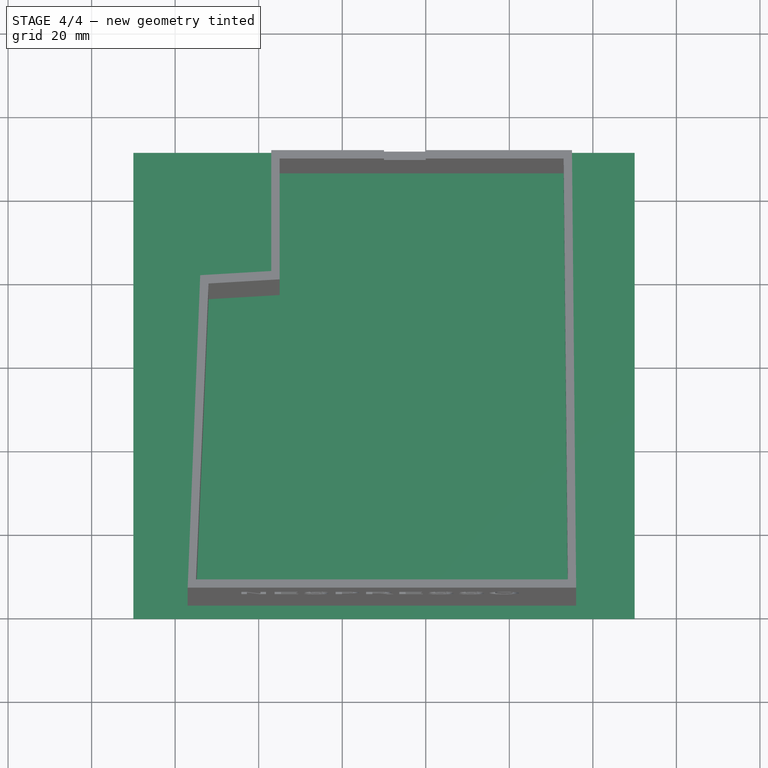
[diagram: stage 4 of 4 — top view after this stage's code; geometry added in this stage tinted green]
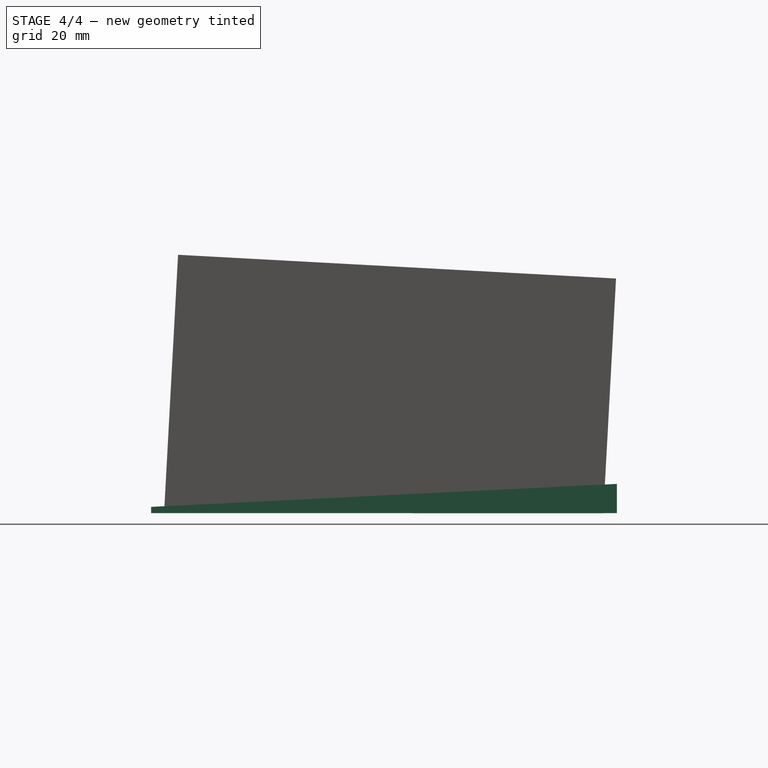
[diagram: stage 4 of 4 — right view after this stage's code; geometry added in this stage tinted green]
FEATURE [Part::Feature] wire002
  shape: bbox 111.5 x 7 x 2e-07 mm, 1 faces, 0 solids (baked)
FEATURE [Part::FeaturePython] RefineLinearExtrude001  # WARN: FeaturePython — macro-defined, semantics opaque (R4)
  Base = -> wire002
FEATURE [Part::Extrusion] LinearExtrude001
  Base = -> RefineLinearExtrude001
  Dir = (0,0,120)
  Placement = pos=(-10,-0.1,-0.1) rot=(0.57735,0.57735,0.57735;2.0944rad)
  Solid = true
FEATURE [Part::Feature] wire005
  shape: bbox 111 x 6 x 2e-07 mm, 1 faces, 0 solids (baked)
FEATURE [Part::FeaturePython] RefineLinearExtrude003  # WARN: FeaturePython — macro-defined, semantics opaque (R4)
  Base = -> wire005
FEATURE [Part::Extrusion] LinearExtrude003
  Base = -> RefineLinearExtrude003
  Dir = (0,0,120)
  Placement = pos=(-10,-0.1,-0.1) rot=(0.57735,0.57735,0.57735;2.0944rad)
  Solid = true
FEATURE [Part::Cut] Cut001
  Base = -> Cut
  Tool = -> Pad001
note: 1 file-system path scrubbed to <path> (originals preserved in the JSON sidecar)
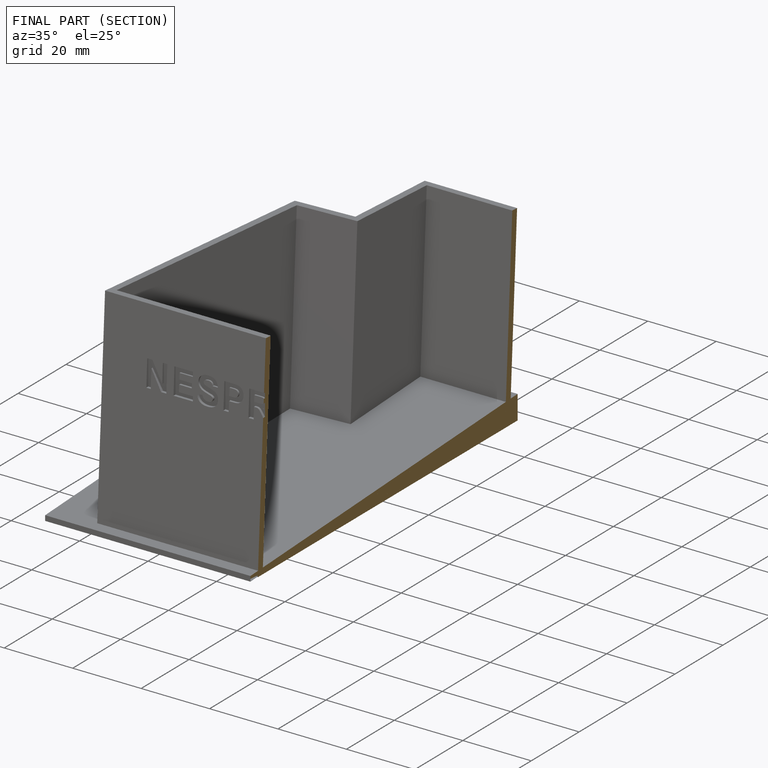
[diagram: finished part — half-section view (interior)]
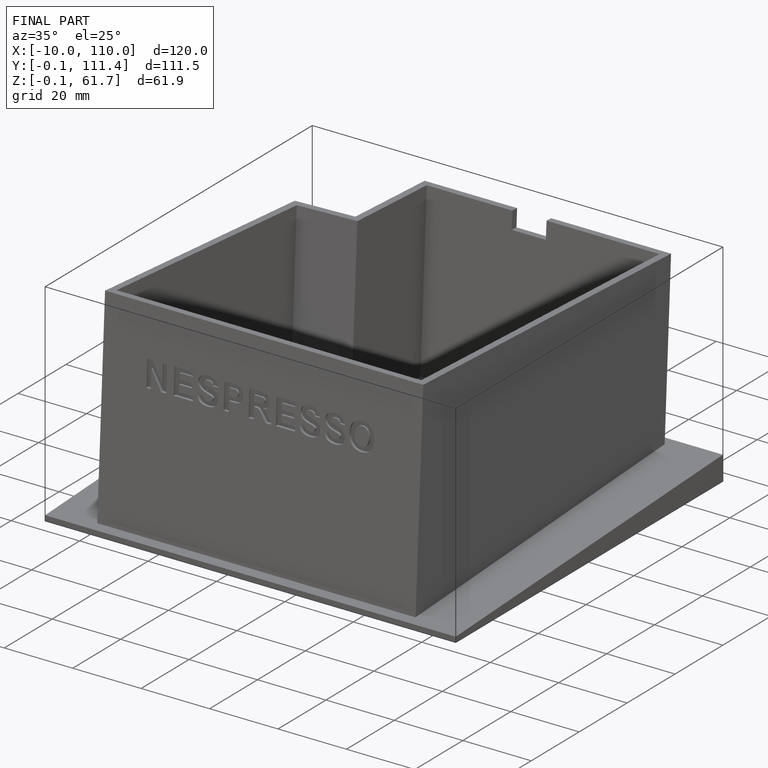
[diagram: finished part — iso view with bounding-box wireframe]
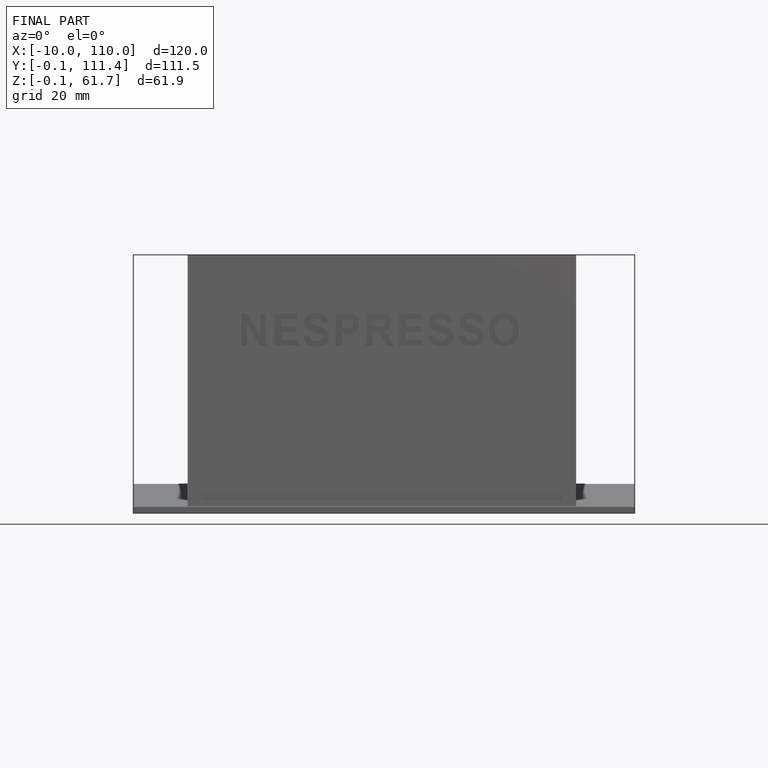
[diagram: finished part — front view with bounding-box wireframe]
